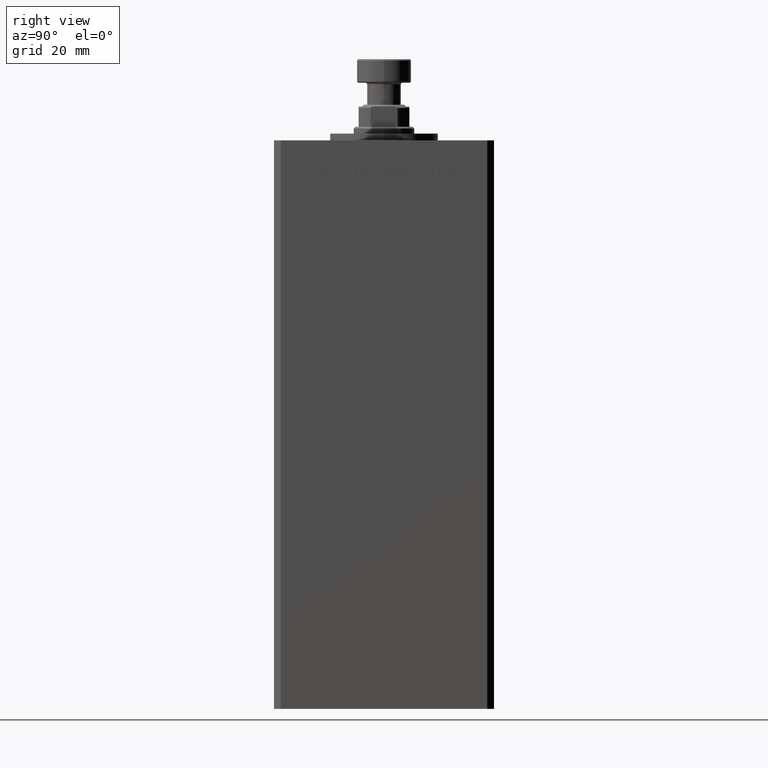
[diagram: clean part render]
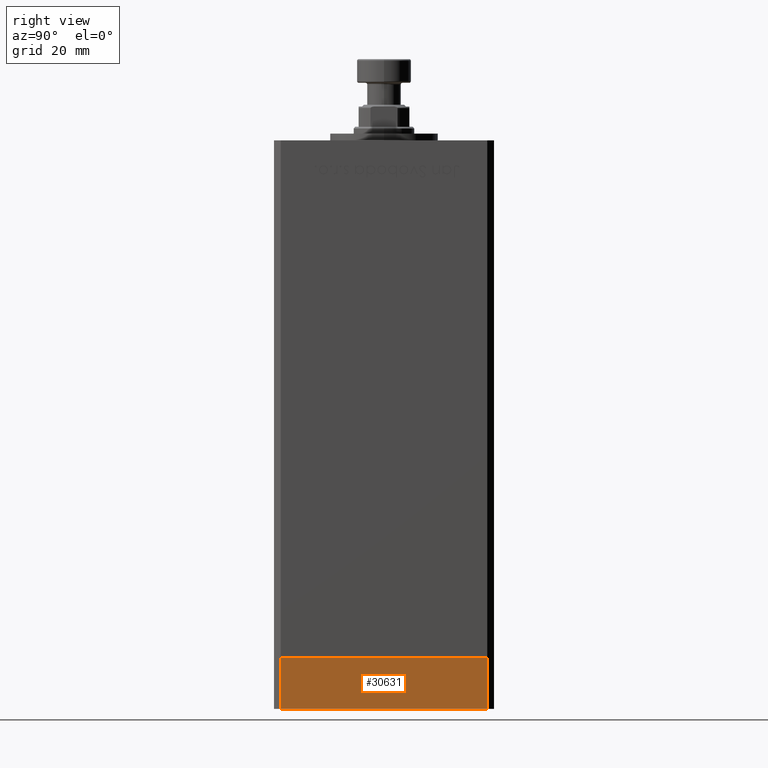
[diagram: same view with one face highlighted and labeled with its STEP entity id]
A machine part, right view. The second image highlights one B-rep face of the part: STEP entity #30631.
In plain terms, the highlighted planar face has unit normal (1, -0, 0).
Its self-contained STEP definition (entity closure, byte-faithful):
#1656 = EDGE_CURVE ( 'NONE', #12723, #17020, #10744, .T. ) ;
#2054 = DIRECTION ( 'NONE',  ( -1.000000000000000000, -4.550094363217855288E-16, 0.000000000000000000 ) ) ;
#3004 = VERTEX_POINT ( 'NONE', #44518 ) ;
#5589 = CARTESIAN_POINT ( 'NONE',  ( -37.49999999999998579, -30.50000000000001421, -15.00000000000000000 ) ) ;
#5662 = ORIENTED_EDGE ( 'NONE', *, *, #10908, .T. ) ;
#5928 = CARTESIAN_POINT ( 'NONE',  ( -37.49999999999998579, -30.50000000000001421, -15.00000000000000000 ) ) ;
#7325 = CARTESIAN_POINT ( 'NONE',  ( -37.50000000000001421, 30.49999999999998579, -15.00000000000000000 ) ) ;
#9091 = AXIS2_PLACEMENT_3D ( 'NONE', #17766, #2054, #46307 ) ;
#9108 = VERTEX_POINT ( 'NONE', #5928 ) ;
#9478 = VECTOR ( 'NONE', #15777, 1000.000000000000000 ) ;
#10034 = PLANE ( 'NONE',  #9091 ) ;
#10744 = LINE ( 'NONE', #51795, #9478 ) ;
#10908 = EDGE_CURVE ( 'NONE', #12723, #9108, #21335, .T. ) ;
#12723 = VERTEX_POINT ( 'NONE', #34121 ) ;
#13772 = VECTOR ( 'NONE', #15836, 1000.000000000000000 ) ;
#15777 = DIRECTION ( 'NONE',  ( 0.000000000000000000, 0.000000000000000000, 1.000000000000000000 ) ) ;
#15836 = DIRECTION ( 'NONE',  ( 4.550094363217855288E-16, -1.000000000000000000, 0.000000000000000000 ) ) ;
#17020 = VERTEX_POINT ( 'NONE', #29619 ) ;
#17766 = CARTESIAN_POINT ( 'NONE',  ( -37.50000000000001421, 30.49999999999998579, -15.00000000000000000 ) ) ;
#19980 = VECTOR ( 'NONE', #23464, 1000.000000000000000 ) ;
#20423 = EDGE_CURVE ( 'NONE', #17020, #3004, #28227, .T. ) ;
#21335 = LINE ( 'NONE', #7325, #13772 ) ;
#23464 = DIRECTION ( 'NONE',  ( 4.550094363217855288E-16, -1.000000000000000000, 0.000000000000000000 ) ) ;
#24021 = ORIENTED_EDGE ( 'NONE', *, *, #20423, .F. ) ;
#26359 = DIRECTION ( 'NONE',  ( 0.000000000000000000, 0.000000000000000000, 1.000000000000000000 ) ) ;
#28213 = VECTOR ( 'NONE', #26359, 1000.000000000000000 ) ;
#28227 = LINE ( 'NONE', #47733, #19980 ) ;
#29477 = EDGE_LOOP ( 'NONE', ( #24021, #37872, #5662, #33419 ) ) ;
#29619 = CARTESIAN_POINT ( 'NONE',  ( -37.50000000000001421, 30.49999999999998579, 0.000000000000000000 ) ) ;
#30631 = ADVANCED_FACE ( 'NONE', ( #37490 ), #10034, .T. ) ;
#33419 = ORIENTED_EDGE ( 'NONE', *, *, #44977, .T. ) ;
#34121 = CARTESIAN_POINT ( 'NONE',  ( -37.50000000000001421, 30.49999999999998579, -15.00000000000000000 ) ) ;
#37490 = FACE_OUTER_BOUND ( 'NONE', #29477, .T. ) ;
#37872 = ORIENTED_EDGE ( 'NONE', *, *, #1656, .F. ) ;
#44518 = CARTESIAN_POINT ( 'NONE',  ( -37.49999999999998579, -30.50000000000001421, 0.000000000000000000 ) ) ;
#44977 = EDGE_CURVE ( 'NONE', #9108, #3004, #50641, .T. ) ;
#46307 = DIRECTION ( 'NONE',  ( 4.550094363217855288E-16, -1.000000000000000000, 0.000000000000000000 ) ) ;
#47733 = CARTESIAN_POINT ( 'NONE',  ( -37.50000000000001421, 30.49999999999998579, 0.000000000000000000 ) ) ;
#50641 = LINE ( 'NONE', #5589, #28213 ) ;
#51795 = CARTESIAN_POINT ( 'NONE',  ( -37.50000000000001421, 30.49999999999998579, -15.00000000000000000 ) ) ;